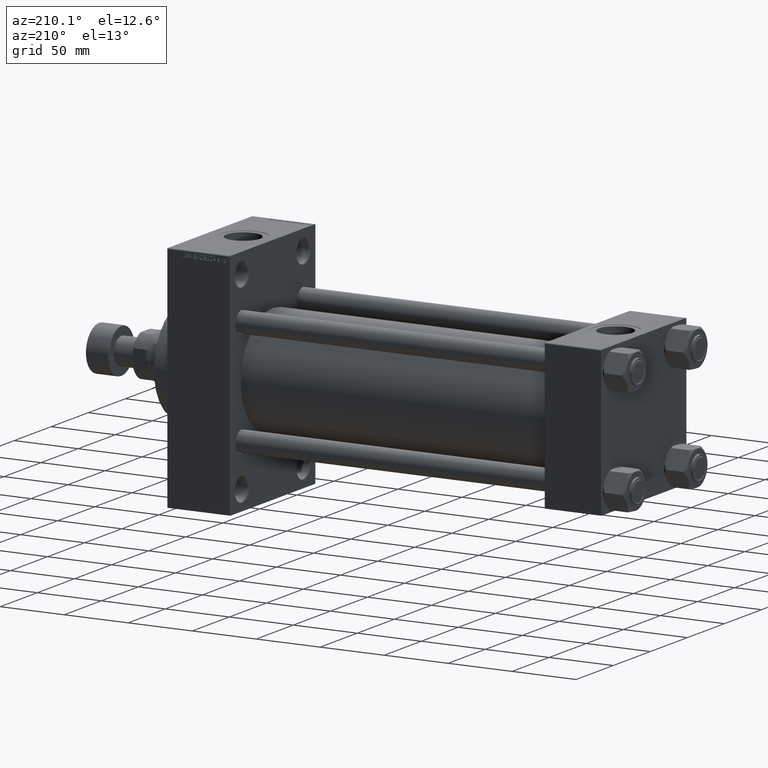
[diagram: clean part render]
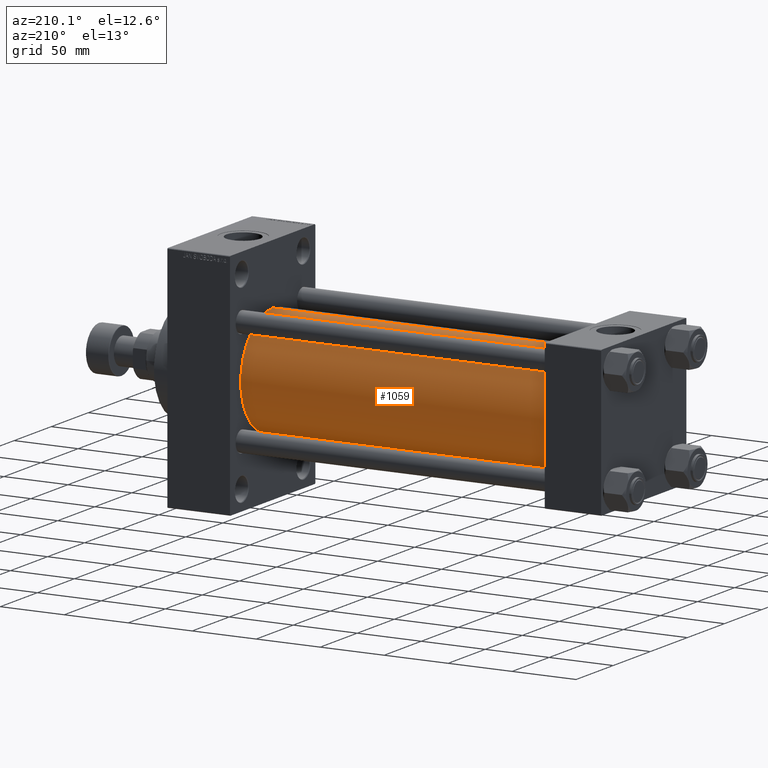
[diagram: same view with one face highlighted and labeled with its STEP entity id]
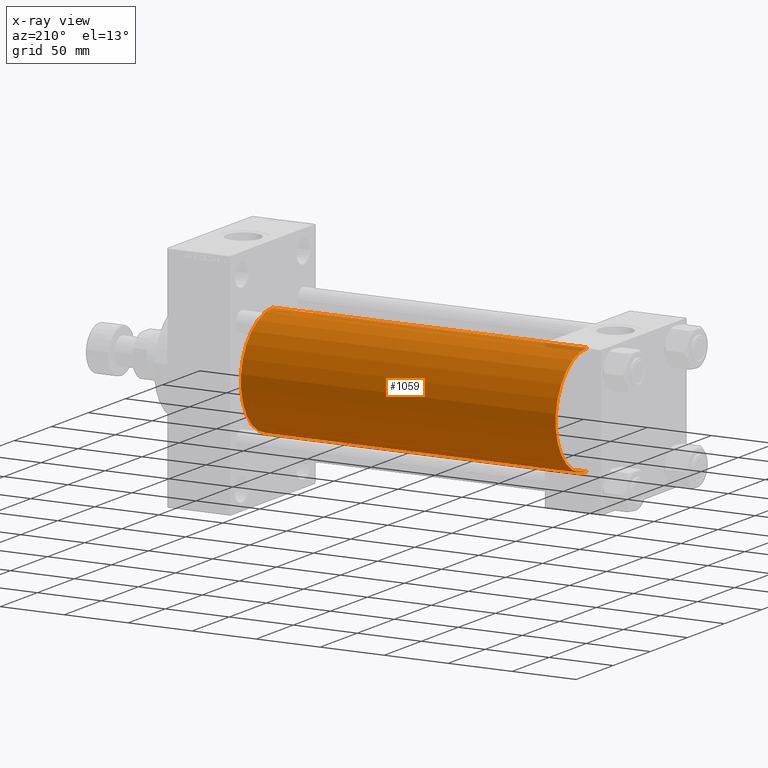
[diagram: x-ray of the same camera — body ghosted, the highlighted face saturated]
A machine part, auxiliary view. The second image highlights one B-rep face of the part: STEP entity #1059.
The next image is the same camera in x-ray: the body ghosted, the highlighted face saturated — about 1% of this face is hidden behind the body in this view.
In plain terms, the highlighted cylindrical surface (partial cylindrical patch) has radius 43 mm, axis along (-1, -0, -0).
Its self-contained STEP definition (entity closure, byte-faithful):
#261 = CARTESIAN_POINT ( 'NONE',  ( 290.0000000000000000, 2.663896022368408223E-15, -43.00000000000000000 ) ) ;
#974 = DIRECTION ( 'NONE',  ( -1.000000000000000000, -0.000000000000000000, -0.000000000000000000 ) ) ;
#1059 = ADVANCED_FACE ( 'NONE', ( #23572 ), #9425, .T. ) ;
#1958 = ORIENTED_EDGE ( 'NONE', *, *, #31364, .F. ) ;
#7610 = CIRCLE ( 'NONE', #33238, 43.00000000000000000 ) ;
#8266 = LINE ( 'NONE', #261, #31586 ) ;
#9425 = CYLINDRICAL_SURFACE ( 'NONE', #25061, 43.00000000000000000 ) ;
#13502 = DIRECTION ( 'NONE',  ( 1.000000000000000000, -0.000000000000000000, 0.000000000000000000 ) ) ;
#14733 = DIRECTION ( 'NONE',  ( 1.000000000000000000, 0.000000000000000000, 0.000000000000000000 ) ) ;
#16088 = VECTOR ( 'NONE', #40851, 1000.000000000000000 ) ;
#17661 = CARTESIAN_POINT ( 'NONE',  ( 43.99999999999998579, 2.663896022368408223E-15, -43.00000000000000000 ) ) ;
#18041 = ORIENTED_EDGE ( 'NONE', *, *, #43520, .F. ) ;
#19024 = CARTESIAN_POINT ( 'NONE',  ( 290.0000000000000000, 2.663896022368408223E-15, -43.00000000000000000 ) ) ;
#20398 = DIRECTION ( 'NONE',  ( -1.000000000000000000, -0.000000000000000000, -0.000000000000000000 ) ) ;
#20678 = CARTESIAN_POINT ( 'NONE',  ( 43.99999999999998579, -2.602085213965210642E-15, 43.00000000000000000 ) ) ;
#23572 = FACE_OUTER_BOUND ( 'NONE', #40744, .T. ) ;
#24852 = EDGE_CURVE ( 'NONE', #37017, #47966, #40850, .T. ) ;
#24975 = VERTEX_POINT ( 'NONE', #34891 ) ;
#25061 = AXIS2_PLACEMENT_3D ( 'NONE', #45716, #20398, #26984 ) ;
#26984 = DIRECTION ( 'NONE',  ( 0.000000000000000000, 0.000000000000000000, 1.000000000000000000 ) ) ;
#27797 = ORIENTED_EDGE ( 'NONE', *, *, #36534, .T. ) ;
#29587 = DIRECTION ( 'NONE',  ( 0.000000000000000000, 0.000000000000000000, -1.000000000000000000 ) ) ;
#31364 = EDGE_CURVE ( 'NONE', #24975, #47966, #44254, .T. ) ;
#31586 = VECTOR ( 'NONE', #974, 1000.000000000000000 ) ;
#33238 = AXIS2_PLACEMENT_3D ( 'NONE', #33243, #14733, #29587 ) ;
#33243 = CARTESIAN_POINT ( 'NONE',  ( 290.0000000000000000, -2.602085213965210642E-15, 0.000000000000000000 ) ) ;
#34891 = CARTESIAN_POINT ( 'NONE',  ( 290.0000000000000000, -2.602085213965210642E-15, 43.00000000000000000 ) ) ;
#36137 = CARTESIAN_POINT ( 'NONE',  ( 43.99999999999998579, -2.602085213965210642E-15, 0.000000000000000000 ) ) ;
#36534 = EDGE_CURVE ( 'NONE', #45133, #37017, #8266, .T. ) ;
#37017 = VERTEX_POINT ( 'NONE', #17661 ) ;
#39565 = DIRECTION ( 'NONE',  ( 0.000000000000000000, 0.000000000000000000, 1.000000000000000000 ) ) ;
#40744 = EDGE_LOOP ( 'NONE', ( #18041, #27797, #45570, #1958 ) ) ;
#40850 = CIRCLE ( 'NONE', #46303, 43.00000000000000000 ) ;
#40851 = DIRECTION ( 'NONE',  ( -1.000000000000000000, -0.000000000000000000, -0.000000000000000000 ) ) ;
#43520 = EDGE_CURVE ( 'NONE', #45133, #24975, #7610, .T. ) ;
#44254 = LINE ( 'NONE', #44737, #16088 ) ;
#44737 = CARTESIAN_POINT ( 'NONE',  ( 290.0000000000000000, -2.602085213965210642E-15, 43.00000000000000000 ) ) ;
#45133 = VERTEX_POINT ( 'NONE', #19024 ) ;
#45570 = ORIENTED_EDGE ( 'NONE', *, *, #24852, .T. ) ;
#45716 = CARTESIAN_POINT ( 'NONE',  ( 290.0000000000000000, -2.602085213965210642E-15, 0.000000000000000000 ) ) ;
#46303 = AXIS2_PLACEMENT_3D ( 'NONE', #36137, #13502, #39565 ) ;
#47966 = VERTEX_POINT ( 'NONE', #20678 ) ;